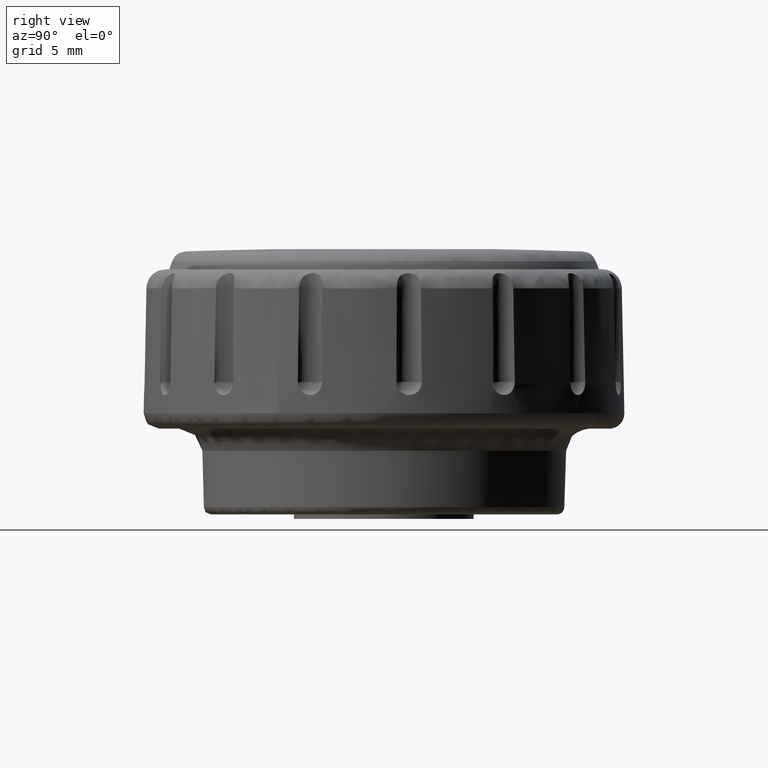
[diagram: clean part render]
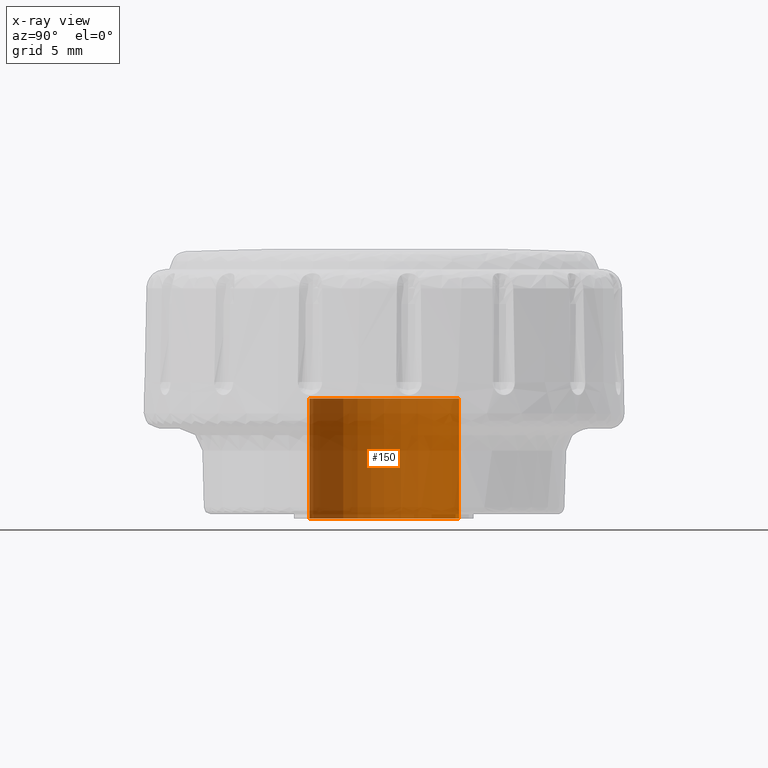
[diagram: x-ray — body ghosted, one internal face saturated and labeled with its STEP entity id]
A machine part, right view, then the same camera in x-ray: the body is ghosted and one INTERNAL B-rep face — a face not visible from any outside direction — is saturated and labeled: STEP entity #150.
In plain terms, the highlighted face is a freeform B-spline surface patch.
Its self-contained STEP definition (entity closure, byte-faithful):
#44=CARTESIAN_POINT('',(0.663853667034430,-4.956289350526403,8.200000000000001));
#45=CARTESIAN_POINT('',(0.626908540367233,-4.960680838860285,8.200000000000001));
#46=CARTESIAN_POINT('',(0.448073643189888,-4.981938077243028,8.199999999999999));
#47=CARTESIAN_POINT('',(0.305242697674285,-4.990673992109334,8.199999999999999));
#48=CARTESIAN_POINT('',(-4.685431294435048,-5.295916689783620,8.199999999999999));
#49=CARTESIAN_POINT('',(-4.990673992109334,-0.305242697674285,8.199999999999999));
#50=CARTESIAN_POINT('',(-5.295916689783620,4.685431294435048,8.199999999999999));
#51=CARTESIAN_POINT('',(-0.269350134052774,4.992869275344343,8.199999999999999));
#52=CARTESIAN_POINT('',(-0.233670782718728,4.995051517957202,8.199999999999998));
#53=CARTESIAN_POINT('',(0.663853667034430,-4.956289350526403,-0.205000000000000));
#54=CARTESIAN_POINT('',(0.626908540367233,-4.960680838860285,-0.205000000000000));
#55=CARTESIAN_POINT('',(0.448073643189888,-4.981938077243028,-0.205000000000000));
#56=CARTESIAN_POINT('',(0.305242697674285,-4.990673992109334,-0.205000000000000));
#57=CARTESIAN_POINT('',(-4.685431294435048,-5.295916689783620,-0.205000000000000));
#58=CARTESIAN_POINT('',(-4.990673992109334,-0.305242697674285,-0.205000000000000));
#59=CARTESIAN_POINT('',(-5.295916689783620,4.685431294435048,-0.205000000000000));
#60=CARTESIAN_POINT('',(-0.269350134052774,4.992869275344343,-0.205000000000000));
#61=CARTESIAN_POINT('',(-0.233670782718728,4.995051517957202,-0.205000000000000));
#69=(BOUNDED_SURFACE()B_SPLINE_SURFACE(2,1,((#44,#53),(#45,#54),(#46,#55),(#47,#56),(#48,#57),(#49,#58),(#50,#59),(#51,#60),(#52,#61)),.UNSPECIFIED.,.F.,.F.,.U.)B_SPLINE_SURFACE_WITH_KNOTS((3,1,2,2,1,3),(2,2),(0.0,0.084498776459654,0.415869626358131,8.700140873820029,16.984412121281931,17.068922544628879),(0.0,8.405000000000001),.UNSPECIFIED.)GEOMETRIC_REPRESENTATION_ITEM()RATIONAL_B_SPLINE_SURFACE(((0.972008832274161,0.972008832274161),(0.974757316534644,0.974757316534644),(0.988284271247462,0.988284271247462),(1.0,1.0),(0.707106781186548,0.707106781186548),(1.0,1.0),(0.707106781186548,0.707106781186548),(1.002987894671479,1.002987894671479),(1.005975789342958,1.005975789342958)))REPRESENTATION_ITEM('')SURFACE());
#70=CARTESIAN_POINT('',(0.590170437399357,-4.965047719289241,5.110971E-016));
#71=VERTEX_POINT('',#70);
#72=CARTESIAN_POINT('',(-5.0,0.0,0.0));
#73=VERTEX_POINT('',#72);
#74=CARTESIAN_POINT('',(0.590170437399357,-4.965047719289241,5.110971E-016));
#75=CARTESIAN_POINT('',(0.296119854595459,-5.0,0.0));
#76=CARTESIAN_POINT('',(0.0,-5.0,0.0));
#77=CARTESIAN_POINT('',(-5.000000000000001,-5.000000000000001,0.0));
#78=CARTESIAN_POINT('',(-5.0,0.0,0.0));
#86=(BOUNDED_CURVE()B_SPLINE_CURVE(2,(#74,#75,#76,#77,#78),.UNSPECIFIED.,.F.,.U.)B_SPLINE_CURVE_WITH_KNOTS((3,2,3),(0.229562523612592,0.250000000000000,0.500000000000000),.UNSPECIFIED.)CURVE()GEOMETRIC_REPRESENTATION_ITEM()RATIONAL_B_SPLINE_CURVE((0.956026852379977,0.976056007025872,1.0,0.707106781186548,1.0))REPRESENTATION_ITEM(''));
#87=EDGE_CURVE('',#71,#73,#86,.T.);
#88=ORIENTED_EDGE('',*,*,#87,.F.);
#89=CARTESIAN_POINT('',(0.590170446463782,-4.965047718211800,8.0));
#90=VERTEX_POINT('',#89);
#91=CARTESIAN_POINT('',(0.590170446463782,-4.965047718211800,8.0));
#92=CARTESIAN_POINT('',(0.590170437399357,-4.965047719289241,5.110971E-016));
#93=QUASI_UNIFORM_CURVE('',1,(#91,#92),.UNSPECIFIED.,.F.,.U.);
#94=EDGE_CURVE('',#90,#71,#93,.T.);
#95=ORIENTED_EDGE('',*,*,#94,.F.);
#96=CARTESIAN_POINT('',(-5.0,0.0,8.0));
#97=VERTEX_POINT('',#96);
#98=CARTESIAN_POINT('',(0.590170446463782,-4.965047718211800,8.000000000000002));
#99=CARTESIAN_POINT('',(0.296119863755711,-5.0,8.0));
#100=CARTESIAN_POINT('',(0.0,-5.0,8.0));
#101=CARTESIAN_POINT('',(-5.000000000000001,-5.000000000000001,8.0));
#102=CARTESIAN_POINT('',(-5.0,0.0,8.0));
#110=(BOUNDED_CURVE()B_SPLINE_CURVE(2,(#98,#99,#100,#101,#102),.UNSPECIFIED.,.F.,.U.)B_SPLINE_CURVE_WITH_KNOTS((3,2,3),(0.229562522995511,0.250000000000000,0.500000000000000),.UNSPECIFIED.)CURVE()GEOMETRIC_REPRESENTATION_ITEM()RATIONAL_B_SPLINE_CURVE((0.956026851170473,0.976056006302917,1.0,0.707106781186548,1.0))REPRESENTATION_ITEM(''));
#111=EDGE_CURVE('',#90,#97,#110,.T.);
#112=ORIENTED_EDGE('',*,*,#111,.T.);
#113=CARTESIAN_POINT('',(-0.305233602636167,4.990674548369059,8.0));
#114=VERTEX_POINT('',#113);
#115=CARTESIAN_POINT('',(-5.0,0.0,8.0));
#116=CARTESIAN_POINT('',(-4.999999999999999,4.703538922298357,8.0));
#117=CARTESIAN_POINT('',(-0.305233602636167,4.990674548369059,8.0));
#125=(BOUNDED_CURVE()B_SPLINE_CURVE(2,(#115,#116,#117),.UNSPECIFIED.,.F.,.U.)B_SPLINE_CURVE_WITH_KNOTS((3,3),(0.500000000000000,0.739333276692482),.UNSPECIFIED.)CURVE()GEOMETRIC_REPRESENTATION_ITEM()RATIONAL_B_SPLINE_CURVE((1.0,0.719603624881474,0.976072715601436))REPRESENTATION_ITEM(''));
#126=EDGE_CURVE('',#97,#114,#125,.T.);
#127=ORIENTED_EDGE('',*,*,#126,.T.);
#128=CARTESIAN_POINT('',(-0.305233489113858,4.990674555311962,6.024348E-014));
#129=VERTEX_POINT('',#128);
#130=CARTESIAN_POINT('',(-0.305233602636167,4.990674548369059,8.0));
#131=CARTESIAN_POINT('',(-0.305233489113858,4.990674555311962,6.024348E-014));
#132=QUASI_UNIFORM_CURVE('',1,(#130,#131),.UNSPECIFIED.,.F.,.U.);
#133=EDGE_CURVE('',#114,#129,#132,.T.);
#134=ORIENTED_EDGE('',*,*,#133,.T.);
#135=CARTESIAN_POINT('',(-5.0,0.0,0.0));
#136=CARTESIAN_POINT('',(-5.0,4.703539029489132,0.0));
#137=CARTESIAN_POINT('',(-0.305233489113858,4.990674555311961,6.024348E-014));
#145=(BOUNDED_CURVE()B_SPLINE_CURVE(2,(#135,#136,#137),.UNSPECIFIED.,.F.,.U.)B_SPLINE_CURVE_WITH_KNOTS((3,3),(0.500000000000000,0.739333280617386),.UNSPECIFIED.)CURVE()GEOMETRIC_REPRESENTATION_ITEM()RATIONAL_B_SPLINE_CURVE((1.0,0.719603620283162,0.976072724013277))REPRESENTATION_ITEM(''));
#146=EDGE_CURVE('',#73,#129,#145,.T.);
#147=ORIENTED_EDGE('',*,*,#146,.F.);
#148=EDGE_LOOP('',(#88,#95,#112,#127,#134,#147));
#149=FACE_OUTER_BOUND('',#148,.T.);
#150=ADVANCED_FACE('',(#149),#69,.T.);